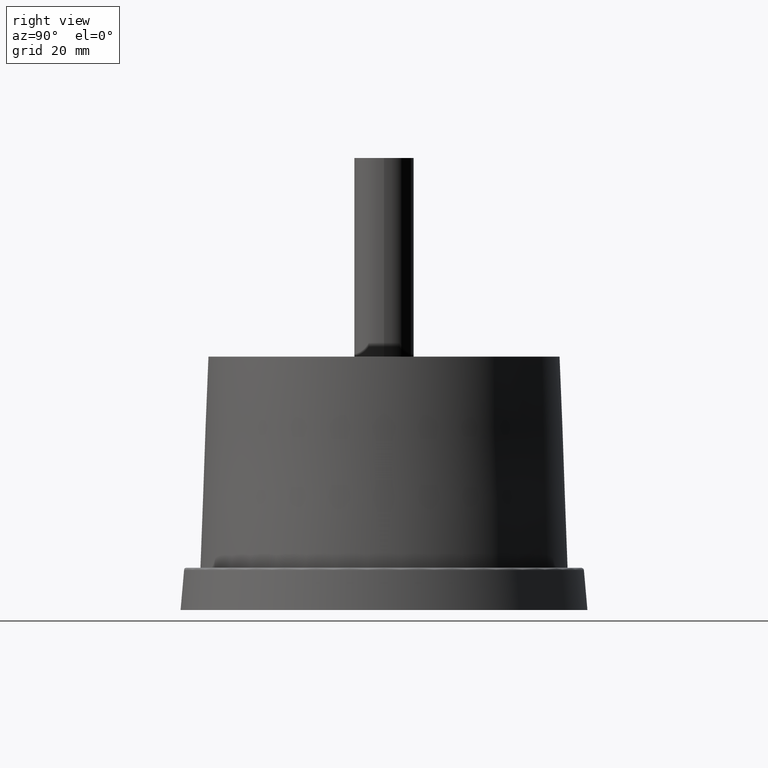
[diagram: clean part render]
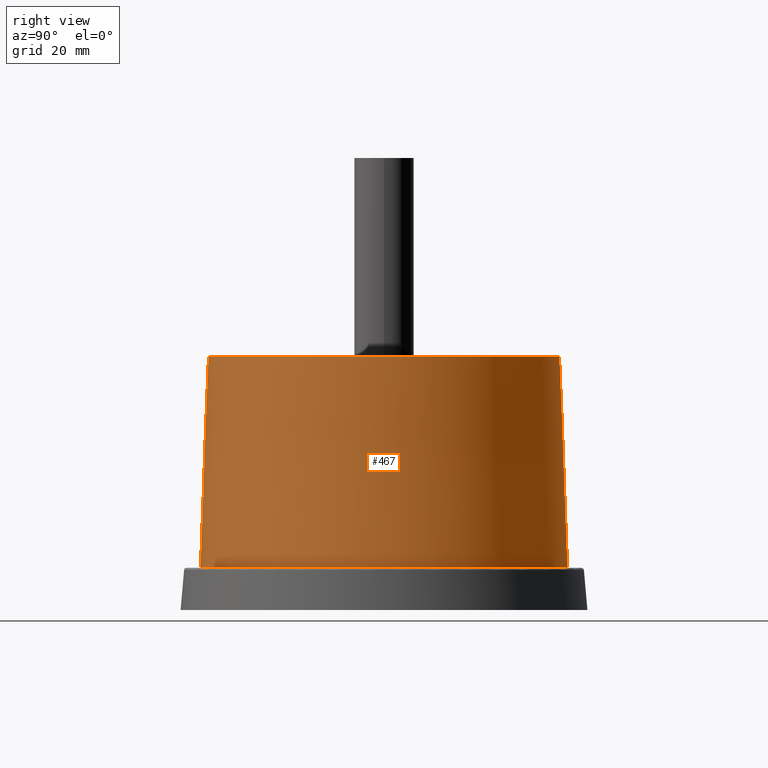
[diagram: same view with one face highlighted and labeled with its STEP entity id]
A machine part, right view. The second image highlights one B-rep face of the part: STEP entity #467.
In plain terms, the highlighted conical surface has half-angle 2.021 deg.
Its self-contained STEP definition (entity closure, byte-faithful):
#16=CONICAL_SURFACE('',#552,37.,2.02136494035601);
#78=FACE_BOUND('',#202,.T.);
#120=FACE_OUTER_BOUND('',#201,.T.);
#201=EDGE_LOOP('',(#406));
#202=EDGE_LOOP('',(#407));
#219=CIRCLE('',#502,35.5);
#222=CIRCLE('',#507,37.);
#260=VERTEX_POINT('',#770);
#263=VERTEX_POINT('',#778);
#301=EDGE_CURVE('',#260,#260,#219,.T.);
#304=EDGE_CURVE('',#263,#263,#222,.T.);
#406=ORIENTED_EDGE('',*,*,#304,.F.);
#407=ORIENTED_EDGE('',*,*,#301,.T.);
#467=ADVANCED_FACE('',(#120,#78),#16,.T.);
#502=AXIS2_PLACEMENT_3D('',#771,#619,#620);
#507=AXIS2_PLACEMENT_3D('',#779,#629,#630);
#552=AXIS2_PLACEMENT_3D('',#845,#719,#720);
#619=DIRECTION('center_axis',(0.,0.,-1.));
#620=DIRECTION('ref_axis',(-1.,0.,0.));
#629=DIRECTION('center_axis',(0.,0.,-1.));
#630=DIRECTION('ref_axis',(-1.,0.,0.));
#719=DIRECTION('center_axis',(0.,0.,-1.));
#720=DIRECTION('ref_axis',(-1.,0.,0.));
#770=CARTESIAN_POINT('',(-35.5,0.,51.));
#771=CARTESIAN_POINT('Origin',(0.,0.,51.));
#778=CARTESIAN_POINT('',(-37.,0.,8.5));
#779=CARTESIAN_POINT('Origin',(0.,0.,8.5));
#845=CARTESIAN_POINT('Origin',(0.,0.,8.5));